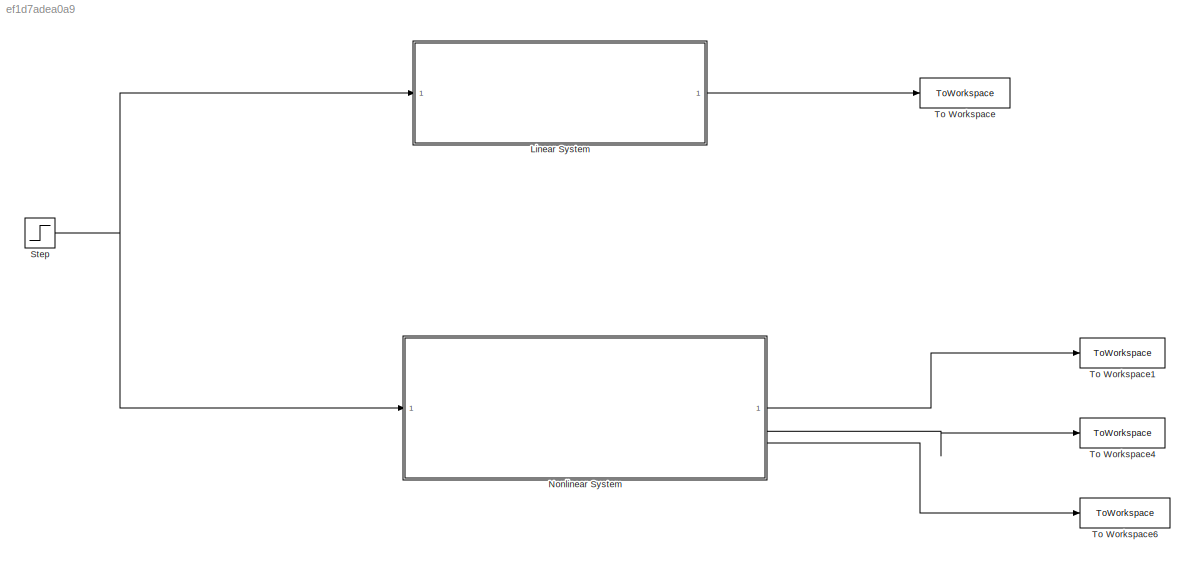
MODEL slx_ef1d7adea0a9
KIND model
CONFIG AbsTol = auto
CONFIG EnableMultiTasking = off
CONFIG FixedStep = auto
CONFIG MaxStep = auto
CONFIG MinStep = auto
CONFIG RelTol = 1e-3
CONFIG SampleTimeConstraint = Unconstrained
CONFIG SolverName = VariableStepAuto
CONFIG StartTime = 0.0
CONFIG StopTime = 20
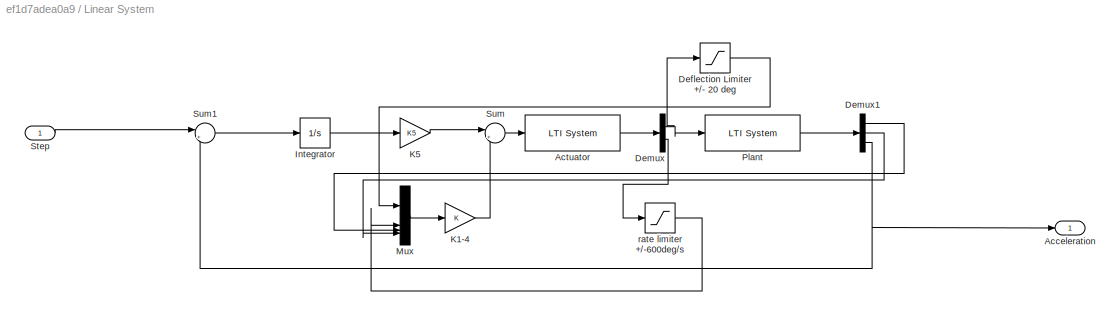
BLOCK [SubSystem] Linear System
BLOCK [Outport] Linear System/Acceleration
BLOCK [Reference] Linear System/Actuator  REF=cstblocks/LTI System
  SourceBlock = cstblocks/LTI System
  SourceType = LTI Block
BLOCK [Saturate] Linear System/Deflection Limiter +//- 20 deg
  LowerLimit = -20*pi/180
  UpperLimit = 20*pi/180
BLOCK [Demux] Linear System/Demux
  Outputs = 2
BLOCK [Demux] Linear System/Demux1
  Outputs = 3
BLOCK [Integrator] Linear System/Integrator
BLOCK [Gain] Linear System/K1-4
  Gain = K
  Multiplication = Matrix(K*u)
BLOCK [Gain] Linear System/K5
  Gain = K5
BLOCK [Mux] Linear System/Mux
  DisplayOption = bar
BLOCK [Reference] Linear System/Plant  REF=cstblocks/LTI System
  SourceBlock = cstblocks/LTI System
  SourceType = LTI Block
BLOCK [Inport] Linear System/Step
BLOCK [Sum] Linear System/Sum
  Inputs = |+-
BLOCK [Sum] Linear System/Sum1
  Inputs = |+-
BLOCK [Saturate] Linear System/rate limiter +//-600deg//s
  LowerLimit = -600*pi/180
  UpperLimit = 600*pi/180
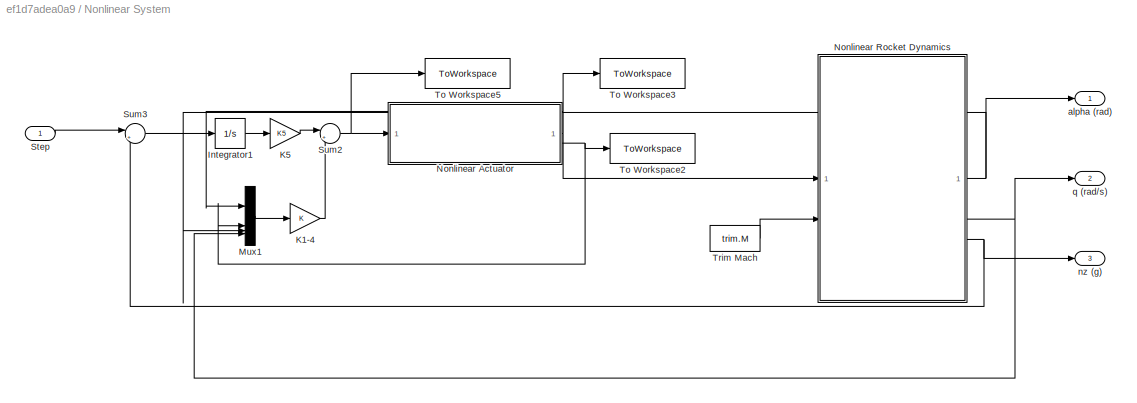
BLOCK [SubSystem] Nonlinear System
BLOCK [Integrator] Nonlinear System/Integrator1
BLOCK [Gain] Nonlinear System/K1-4
  Gain = K
  Multiplication = Matrix(K*u)
BLOCK [Gain] Nonlinear System/K5
  Gain = K5
BLOCK [Mux] Nonlinear System/Mux1
  DisplayOption = bar
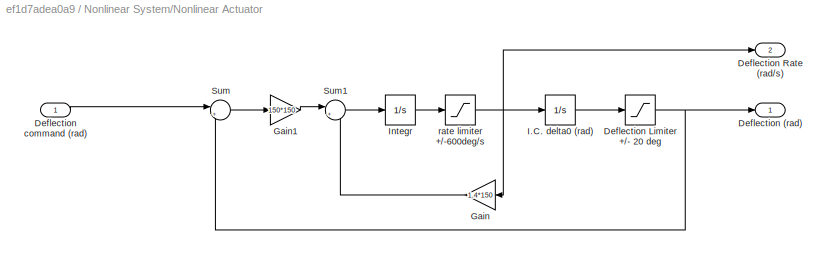
BLOCK [SubSystem] Nonlinear System/Nonlinear Actuator
BLOCK [Outport] Nonlinear System/Nonlinear Actuator/Deflection (rad)
BLOCK [Saturate] Nonlinear System/Nonlinear Actuator/Deflection Limiter +//- 20 deg
  LowerLimit = -20*pi/180
  UpperLimit = 20*pi/180
BLOCK [Outport] Nonlinear System/Nonlinear Actuator/Deflection Rate (rad//s)
  Port = 2
BLOCK [Inport] Nonlinear System/Nonlinear Actuator/Deflection command (rad)
BLOCK [Gain] Nonlinear System/Nonlinear Actuator/Gain
  Gain = 1.4*150
BLOCK [Gain] Nonlinear System/Nonlinear Actuator/Gain1
  Gain = 150*150
BLOCK [Integrator] Nonlinear System/Nonlinear Actuator/I.C. delta0 (rad)
BLOCK [Integrator] Nonlinear System/Nonlinear Actuator/Integr
BLOCK [Sum] Nonlinear System/Nonlinear Actuator/Sum
  Inputs = |+-
BLOCK [Sum] Nonlinear System/Nonlinear Actuator/Sum1
  Inputs = |+-
BLOCK [Saturate] Nonlinear System/Nonlinear Actuator/rate limiter +//-600deg//s
  LowerLimit = -600*pi/180
  UpperLimit = 600*pi/180
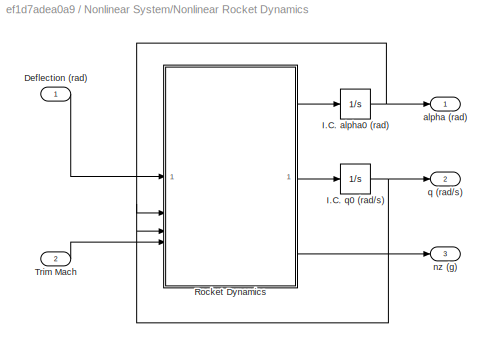
BLOCK [SubSystem] Nonlinear System/Nonlinear Rocket Dynamics
BLOCK [Inport] Nonlinear System/Nonlinear Rocket Dynamics/Deflection (rad)
BLOCK [Integrator] Nonlinear System/Nonlinear Rocket Dynamics/I.C. alpha0 (rad)
BLOCK [Integrator] Nonlinear System/Nonlinear Rocket Dynamics/I.C. q0 (rad//s)
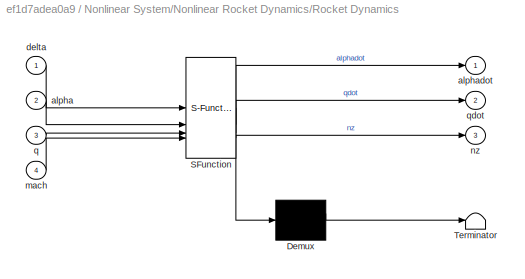
BLOCK [SubSystem] Nonlinear System/Nonlinear Rocket Dynamics/Rocket Dynamics
  ErrorFcn = Stateflow.Translate.translate
  LibrarySourceBlock = simulink/User-Defined\nFunctions/MATLAB Function
  PermitHierarchicalResolution = ExplicitOnly
  SFBlockType = MATLAB Function
  TreatAsAtomicUnit = on
BLOCK [Demux] Nonlinear System/Nonlinear Rocket Dynamics/Rocket Dynamics/ Demux 
  Outputs = 1
BLOCK [S-Function] Nonlinear System/Nonlinear Rocket Dynamics/Rocket Dynamics/ SFunction 
  EnableBusSupport = on
  FunctionName = sf_sfun
  PortCounts = [4 4]
  SFcnIsStateOwnerBlock = off
  SFunctionDeploymentMode = off
  Tag = Stateflow S-Function 2
BLOCK [Terminator] Nonlinear System/Nonlinear Rocket Dynamics/Rocket Dynamics/ Terminator 
BLOCK [Inport] Nonlinear System/Nonlinear Rocket Dynamics/Rocket Dynamics/alpha
  Port = 2
BLOCK [Outport] Nonlinear System/Nonlinear Rocket Dynamics/Rocket Dynamics/alphadot
BLOCK [Inport] Nonlinear System/Nonlinear Rocket Dynamics/Rocket Dynamics/delta
BLOCK [Inport] Nonlinear System/Nonlinear Rocket Dynamics/Rocket Dynamics/mach
  Port = 4
BLOCK [Outport] Nonlinear System/Nonlinear Rocket Dynamics/Rocket Dynamics/nz
  Port = 3
BLOCK [Inport] Nonlinear System/Nonlinear Rocket Dynamics/Rocket Dynamics/q
  Port = 3
BLOCK [Outport] Nonlinear System/Nonlinear Rocket Dynamics/Rocket Dynamics/qdot
  Port = 2
BLOCK [Inport] Nonlinear System/Nonlinear Rocket Dynamics/Trim Mach
  Port = 2
BLOCK [Outport] Nonlinear System/Nonlinear Rocket Dynamics/alpha (rad)
BLOCK [Outport] Nonlinear System/Nonlinear Rocket Dynamics/nz (g)
  Port = 3
BLOCK [Outport] Nonlinear System/Nonlinear Rocket Dynamics/q (rad//s)
  Port = 2
BLOCK [Inport] Nonlinear System/Step
BLOCK [Sum] Nonlinear System/Sum2
  Inputs = |+-
BLOCK [Sum] Nonlinear System/Sum3
  Inputs = |+-
BLOCK [ToWorkspace] Nonlinear System/To Workspace2
  MaxDataPoints = inf
  SampleTime = -1
  VariableName = delta_rate
BLOCK [ToWorkspace] Nonlinear System/To Workspace3
  MaxDataPoints = inf
  SampleTime = -1
  VariableName = delta
BLOCK [ToWorkspace] Nonlinear System/To Workspace5
  MaxDataPoints = inf
  SampleTime = -1
  VariableName = delta_cmd
BLOCK [Constant] Nonlinear System/Trim Mach
  Value = trim.M
BLOCK [Outport] Nonlinear System/alpha (rad)
BLOCK [Outport] Nonlinear System/nz (g)
  Port = 3
BLOCK [Outport] Nonlinear System/q (rad//s)
  Port = 2
BLOCK [Step] Step
  After = step_size
  SampleTime = 0
  Time = 0
BLOCK [ToWorkspace] To Workspace
  FixptAsFi = on
  MaxDataPoints = inf
  SampleTime = -1
  SaveFormat = Timeseries
  VariableName = az_linear
BLOCK [ToWorkspace] To Workspace1
  MaxDataPoints = inf
  SampleTime = -1
  VariableName = alpha
BLOCK [ToWorkspace] To Workspace4
  MaxDataPoints = inf
  SampleTime = -1
  VariableName = q
BLOCK [ToWorkspace] To Workspace6
  FixptAsFi = on
  MaxDataPoints = inf
  SampleTime = -1
  SaveFormat = Timeseries
  VariableName = az_nonlinear
LINE Linear System/Actuator:1 -> Linear System/Demux:1
LINE Linear System/Deflection Limiter +//- 20 deg:1 -> Linear System/Mux:1
LINE Linear System/Demux1:1 -> Linear System/Mux:3
LINE Linear System/Demux1:2 -> Linear System/Mux:4
NET Linear System/Demux1:3 -> Linear System/Acceleration:1, Linear System/Sum1:2
NET Linear System/Demux:1 -> Linear System/Deflection Limiter +//- 20 deg:1, Linear System/Plant:1
LINE Linear System/Demux:2 -> Linear System/rate limiter +//-600deg//s:1
LINE Linear System/Integrator:1 -> Linear System/K5:1
LINE Linear System/K1-4:1 -> Linear System/Sum:2
LINE Linear System/K5:1 -> Linear System/Sum:1
LINE Linear System/Mux:1 -> Linear System/K1-4:1
LINE Linear System/Plant:1 -> Linear System/Demux1:1
LINE Linear System/Step:1 -> Linear System/Sum1:1
LINE Linear System/Sum1:1 -> Linear System/Integrator:1
LINE Linear System/Sum:1 -> Linear System/Actuator:1
LINE Linear System/rate limiter +//-600deg//s:1 -> Linear System/Mux:2
LINE Linear System:1 -> To Workspace:1
LINE Nonlinear System/Integrator1:1 -> Nonlinear System/K5:1
LINE Nonlinear System/K1-4:1 -> Nonlinear System/Sum2:2
LINE Nonlinear System/K5:1 -> Nonlinear System/Sum2:1
LINE Nonlinear System/Mux1:1 -> Nonlinear System/K1-4:1
NET Nonlinear System/Nonlinear Actuator/Deflection Limiter +//- 20 deg:1 -> Nonlinear System/Nonlinear Actuator/Deflection (rad):1, Nonlinear System/Nonlinear Actuator/Sum:2
LINE Nonlinear System/Nonlinear Actuator/Deflection command (rad):1 -> Nonlinear System/Nonlinear Actuator/Sum:1
LINE Nonlinear System/Nonlinear Actuator/Gain1:1 -> Nonlinear System/Nonlinear Actuator/Sum1:1
LINE Nonlinear System/Nonlinear Actuator/Gain:1 -> Nonlinear System/Nonlinear Actuator/Sum1:2
LINE Nonlinear System/Nonlinear Actuator/I.C. delta0 (rad):1 -> Nonlinear System/Nonlinear Actuator/Deflection Limiter +//- 20 deg:1
LINE Nonlinear System/Nonlinear Actuator/Integr:1 -> Nonlinear System/Nonlinear Actuator/rate limiter +//-600deg//s:1
LINE Nonlinear System/Nonlinear Actuator/Sum1:1 -> Nonlinear System/Nonlinear Actuator/Integr:1
LINE Nonlinear System/Nonlinear Actuator/Sum:1 -> Nonlinear System/Nonlinear Actuator/Gain1:1
NET Nonlinear System/Nonlinear Actuator/rate limiter +//-600deg//s:1 -> Nonlinear System/Nonlinear Actuator/Deflection Rate (rad//s):1, Nonlinear System/Nonlinear Actuator/Gain:1, Nonlinear System/Nonlinear Actuator/I.C. delta0 (rad):1
NET Nonlinear System/Nonlinear Actuator:1 -> Nonlinear System/Mux1:1, Nonlinear System/Nonlinear Rocket Dynamics:1, Nonlinear System/To Workspace3:1
NET Nonlinear System/Nonlinear Actuator:2 -> Nonlinear System/Mux1:2, Nonlinear System/To Workspace2:1
LINE Nonlinear System/Nonlinear Rocket Dynamics/Deflection (rad):1 -> Nonlinear System/Nonlinear Rocket Dynamics/Rocket Dynamics:1
NET Nonlinear System/Nonlinear Rocket Dynamics/I.C. alpha0 (rad):1 -> Nonlinear System/Nonlinear Rocket Dynamics/Rocket Dynamics:2, Nonlinear System/Nonlinear Rocket Dynamics/alpha (rad):1
NET Nonlinear System/Nonlinear Rocket Dynamics/I.C. q0 (rad//s):1 -> Nonlinear System/Nonlinear Rocket Dynamics/Rocket Dynamics:3, Nonlinear System/Nonlinear Rocket Dynamics/q (rad//s):1
LINE Nonlinear System/Nonlinear Rocket Dynamics/Rocket Dynamics:1 -> Nonlinear System/Nonlinear Rocket Dynamics/I.C. alpha0 (rad):1
LINE Nonlinear System/Nonlinear Rocket Dynamics/Rocket Dynamics:2 -> Nonlinear System/Nonlinear Rocket Dynamics/I.C. q0 (rad//s):1
LINE Nonlinear System/Nonlinear Rocket Dynamics/Rocket Dynamics:3 -> Nonlinear System/Nonlinear Rocket Dynamics/nz (g):1
LINE Nonlinear System/Nonlinear Rocket Dynamics/Trim Mach:1 -> Nonlinear System/Nonlinear Rocket Dynamics/Rocket Dynamics:4
NET Nonlinear System/Nonlinear Rocket Dynamics:1 -> Nonlinear System/Mux1:3, Nonlinear System/alpha (rad):1
NET Nonlinear System/Nonlinear Rocket Dynamics:2 -> Nonlinear System/Mux1:4, Nonlinear System/q (rad//s):1
NET Nonlinear System/Nonlinear Rocket Dynamics:3 -> Nonlinear System/Sum3:2, Nonlinear System/nz (g):1
LINE Nonlinear System/Step:1 -> Nonlinear System/Sum3:1
NET Nonlinear System/Sum2:1 -> Nonlinear System/Nonlinear Actuator:1, Nonlinear System/To Workspace5:1
LINE Nonlinear System/Sum3:1 -> Nonlinear System/Integrator1:1
LINE Nonlinear System/Trim Mach:1 -> Nonlinear System/Nonlinear Rocket Dynamics:2
LINE Nonlinear System:1 -> To Workspace1:1
LINE Nonlinear System:2 -> To Workspace4:1
LINE Nonlinear System:3 -> To Workspace6:1
NET Step:1 -> Linear System:1, Nonlinear System:1
note: NET lines group one-source signal fan-out (src -> all destinations, sorted); 1:1 wires keep LINE
CHART Nonlinear System/Nonlinear Rocket Dynamics/Rocket Dynamics states=1 transitions=1
  STATE_LABEL 'eML_blk_kernel()'
  STATE_LABEL 'SCRIPT:\nfunction [alphadot, qdot, nz] = rocket_dynamics(delta, alpha, q, mach)\n\n% Unit conversion factors\nd2r = pi/180;               % Degrees to radians\nr2d = 1/d2r;                % Radians to degrees\n\n% Aircraft Parameters\np_s = 973.3;         % Static pressure at 20000ft, lbs/ft^2\nc_s = 1036.4;        % Speed of sound at 20000ft, ft/sec\nS_ref = 0.44;        % Reference area, ft^2\nd = 0.75;   ...<+1193ch>'
CHART  states=0 transitions=0
